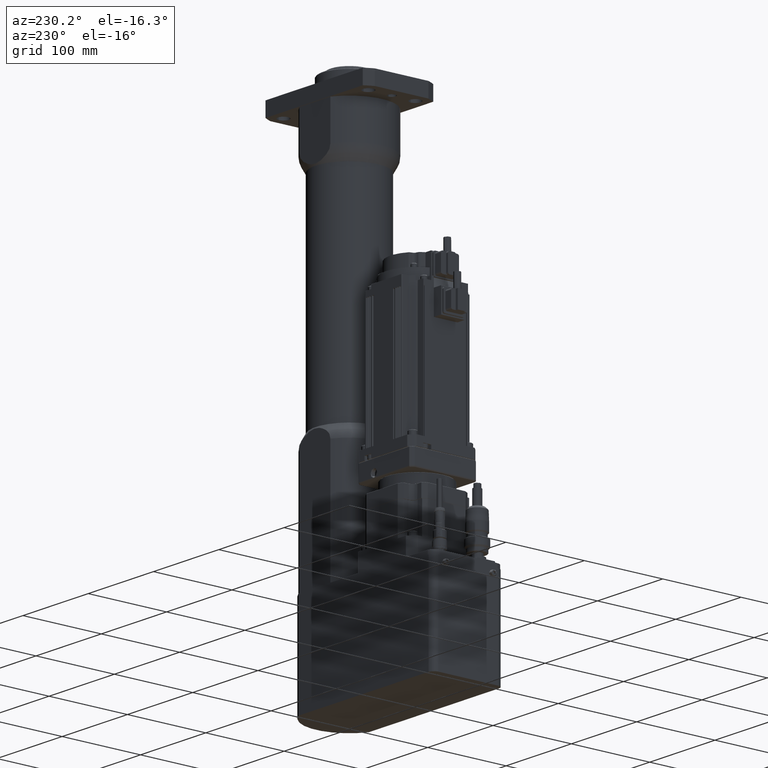
[diagram: clean part render]
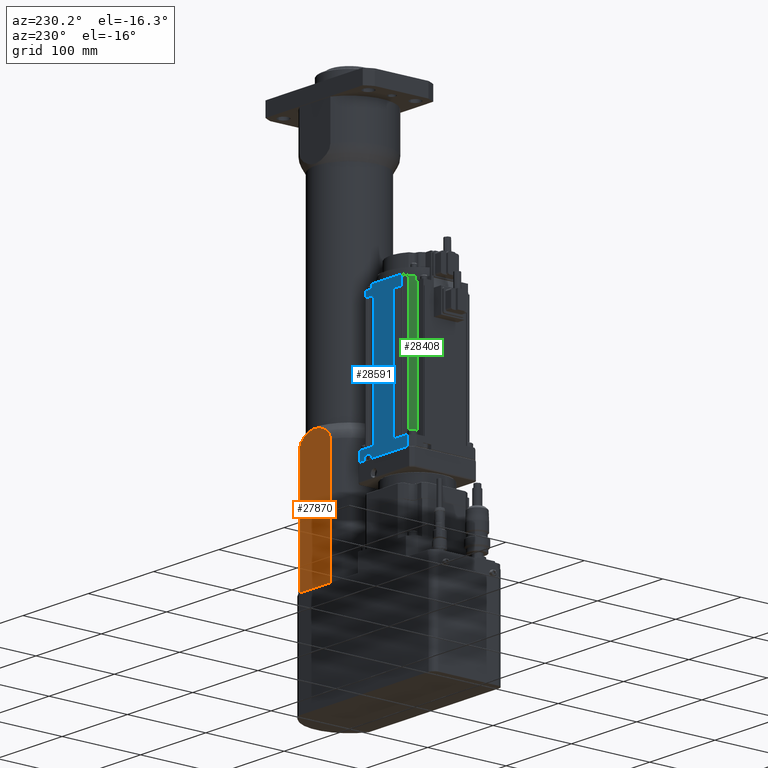
[diagram: same view with three faces highlighted in distinct colors, each labeled with its STEP entity id]
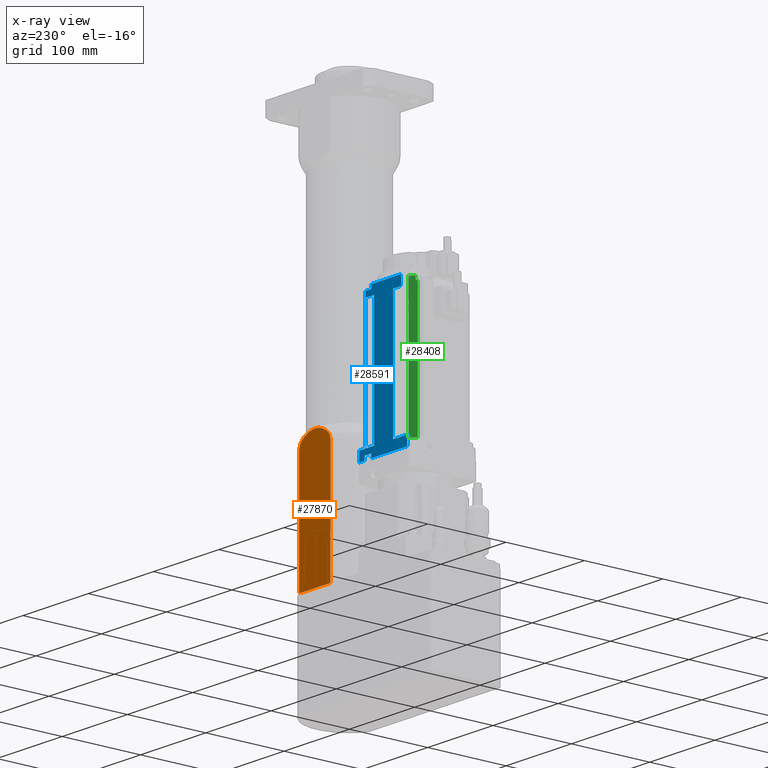
[diagram: x-ray of the same camera — body ghosted, the three highlighted faces saturated]
A machine part, auxiliary view with three faces highlighted in distinct colors.
The next image is the same camera in x-ray (body ghosted, the three faces saturated) — at least one of them is partly hidden behind the body in this view.
Their STEP definitions:

[orange] entity #27870 — the highlighted planar face has unit normal (0, -1, 0).
#2017=B_SPLINE_CURVE_WITH_KNOTS('',3,(#44316,#44317,#44318,#44319,#44320,
#44321,#44322,#44323,#44324,#44325,#44326,#44327,#44328,#44329),
 .UNSPECIFIED.,.F.,.F.,(4,2,2,2,2,2,4),(7.45745620804549,7.64599320848023,
7.91508123407937,8.10491084271875,8.29474045135813,8.45672411882078,8.61870778628343),
 .UNSPECIFIED.);
#2018=B_SPLINE_CURVE_WITH_KNOTS('',3,(#44334,#44335,#44336,#44337,#44338,
#44339,#44340,#44341,#44342,#44343,#44344,#44345,#44346,#44347),
 .UNSPECIFIED.,.F.,.F.,(4,2,2,2,2,2,4),(2.87290259542781,3.03488626289046,
3.19686993035311,3.38669953899249,3.57652914763187,3.84561717323101,4.03415417366575),
 .UNSPECIFIED.);
#2237=(
BOUNDED_CURVE()
B_SPLINE_CURVE(2,(#44331,#44332,#44333),.UNSPECIFIED.,.F.,.F.)
B_SPLINE_CURVE_WITH_KNOTS((3,3),(0.,3.66773939196049),.UNSPECIFIED.)
CURVE()
GEOMETRIC_REPRESENTATION_ITEM()
RATIONAL_B_SPLINE_CURVE((1.,1.07546609262929,1.))
REPRESENTATION_ITEM('')
);
#2608=PLANE('',#30248);
#3828=LINE('',#44187,#5681);
#3838=LINE('',#44349,#5691);
#3839=LINE('',#44350,#5692);
#5681=VECTOR('',#35179,147.516660498395);
#5691=VECTOR('',#35201,47.4973683481517);
#5692=VECTOR('',#35202,147.516660498395);
#8664=FACE_OUTER_BOUND('',#10586,.T.);
#10586=EDGE_LOOP('',(#22071,#22072,#22073,#22074,#22075,#22076));
#14313=VERTEX_POINT('',#44184);
#14314=VERTEX_POINT('',#44186);
#14333=VERTEX_POINT('',#44314);
#14334=VERTEX_POINT('',#44315);
#14335=VERTEX_POINT('',#44330);
#14336=VERTEX_POINT('',#44348);
#17216=EDGE_CURVE('',#14313,#14314,#3828,.T.);
#17237=EDGE_CURVE('',#14333,#14334,#2017,.T.);
#17238=EDGE_CURVE('',#14335,#14333,#2237,.T.);
#17239=EDGE_CURVE('',#14314,#14335,#2018,.T.);
#17240=EDGE_CURVE('',#14336,#14313,#3838,.T.);
#17241=EDGE_CURVE('',#14334,#14336,#3839,.T.);
#22071=ORIENTED_EDGE('',*,*,#17237,.F.);
#22072=ORIENTED_EDGE('',*,*,#17238,.F.);
#22073=ORIENTED_EDGE('',*,*,#17239,.F.);
#22074=ORIENTED_EDGE('',*,*,#17216,.F.);
#22075=ORIENTED_EDGE('',*,*,#17240,.F.);
#22076=ORIENTED_EDGE('',*,*,#17241,.F.);
#27870=ADVANCED_FACE('',(#8664),#2608,.F.);
#30248=AXIS2_PLACEMENT_3D('',#44313,#35199,#35200);
#35179=DIRECTION('',(0.,0.,1.));
#35199=DIRECTION('center_axis',(1.86995290600072E-16,-1.,0.));
#35200=DIRECTION('ref_axis',(-1.,0.,0.));
#35201=DIRECTION('',(1.,1.86995290600071E-16,1.40393876744645E-48));
#35202=DIRECTION('',(0.,0.,-1.));
#44184=CARTESIAN_POINT('',(23.7486841740759,44.,-10.));
#44186=CARTESIAN_POINT('',(23.7486841740758,44.,137.516660498395));
#44187=CARTESIAN_POINT('',(23.7486841740758,44.,155.));
#44313=CARTESIAN_POINT('Origin',(23.7486841740758,44.,487.));
#44314=CARTESIAN_POINT('',(-17.413514422463,44.,147.516660498395));
#44315=CARTESIAN_POINT('',(-23.7486841740758,44.,137.516660498395));
#44316=CARTESIAN_POINT('Ctrl Pts',(-17.413514422463,44.,147.516660498395));
#44317=CARTESIAN_POINT('Ctrl Pts',(-17.9691772268156,44.,147.162492770957));
#44318=CARTESIAN_POINT('Ctrl Pts',(-18.5307143099185,44.,146.763774414199));
#44319=CARTESIAN_POINT('Ctrl Pts',(-19.8257663309892,44.,145.715214285908));
#44320=CARTESIAN_POINT('Ctrl Pts',(-20.5281513532452,44.,145.02794629031));
#44321=CARTESIAN_POINT('Ctrl Pts',(-21.5116079174485,44.,143.856249601342));
#44322=CARTESIAN_POINT('Ctrl Pts',(-21.9207607468253,44.,143.294559762673));
#44323=CARTESIAN_POINT('Ctrl Pts',(-22.6269587478608,44.,142.105984409436));
#44324=CARTESIAN_POINT('Ctrl Pts',(-22.9232767901791,44.,141.478667017768));
#44325=CARTESIAN_POINT('Ctrl Pts',(-23.3273240656141,44.,140.377759800107));
#44326=CARTESIAN_POINT('Ctrl Pts',(-23.4886062749043,44.,139.807449208811));
#44327=CARTESIAN_POINT('Ctrl Pts',(-23.6994141423763,44.,138.646895546326));
#44328=CARTESIAN_POINT('Ctrl Pts',(-23.7486841740758,44.,138.056606056604));
#44329=CARTESIAN_POINT('Ctrl Pts',(-23.7486841740758,44.,137.516660498395));
#44330=CARTESIAN_POINT('',(17.413514422463,44.,147.516660498395));
#44331=CARTESIAN_POINT('Ctrl Pts',(17.4135144224629,44.,147.516660498395));
#44332=CARTESIAN_POINT('Ctrl Pts',(-8.88178419700125E-15,44.,158.615666552794));
#44333=CARTESIAN_POINT('Ctrl Pts',(-17.413514422463,44.,147.516660498395));
#44334=CARTESIAN_POINT('Ctrl Pts',(23.7486841740758,44.,137.516660498395));
#44335=CARTESIAN_POINT('Ctrl Pts',(23.7486841740758,44.,138.056606056604));
#44336=CARTESIAN_POINT('Ctrl Pts',(23.6994141423763,44.,138.646895546326));
#44337=CARTESIAN_POINT('Ctrl Pts',(23.4886062749043,44.,139.807449208811));
#44338=CARTESIAN_POINT('Ctrl Pts',(23.3273240656141,44.,140.377759800107));
#44339=CARTESIAN_POINT('Ctrl Pts',(22.9232767901791,44.,141.478667017768));
#44340=CARTESIAN_POINT('Ctrl Pts',(22.6269587478607,44.,142.105984409436));
#44341=CARTESIAN_POINT('Ctrl Pts',(21.9207607468253,44.,143.294559762673));
#44342=CARTESIAN_POINT('Ctrl Pts',(21.5116079174484,44.,143.856249601343));
#44343=CARTESIAN_POINT('Ctrl Pts',(20.5281513532452,44.,145.02794629031));
#44344=CARTESIAN_POINT('Ctrl Pts',(19.8257663309892,44.,145.715214285908));
#44345=CARTESIAN_POINT('Ctrl Pts',(18.5307143099185,44.,146.763774414199));
#44346=CARTESIAN_POINT('Ctrl Pts',(17.9691772268155,44.,147.162492770957));
#44347=CARTESIAN_POINT('Ctrl Pts',(17.4135144224629,44.,147.516660498395));
#44348=CARTESIAN_POINT('',(-23.7486841740758,43.9999999999999,-10.));
#44349=CARTESIAN_POINT('',(-23.7486841740758,43.9999999999999,-10.));
#44350=CARTESIAN_POINT('',(-23.7486841740758,44.,155.));

[blue] entity #28591 — the highlighted planar face has unit normal (-0, 1, 0).
#3010=PLANE('',#31586);
#4293=LINE('',#46965,#6146);
#4296=LINE('',#46978,#6149);
#4312=LINE('',#47028,#6165);
#4314=LINE('',#47034,#6167);
#4317=LINE('',#47039,#6170);
#4490=LINE('',#47470,#6343);
#4497=LINE('',#47491,#6350);
#4499=LINE('',#47498,#6352);
#4512=LINE('',#47530,#6365);
#4519=LINE('',#47550,#6372);
#4526=LINE('',#47570,#6379);
#4533=LINE('',#47589,#6386);
#4540=LINE('',#47607,#6393);
#4542=LINE('',#47613,#6395);
#4556=LINE('',#47660,#6409);
#4600=LINE('',#47804,#6453);
#4801=LINE('',#48520,#6654);
#4802=LINE('',#48523,#6655);
#4813=LINE('',#48554,#6666);
#4816=LINE('',#48562,#6669);
#4820=LINE('',#48574,#6673);
#4825=LINE('',#48589,#6678);
#4828=LINE('',#48597,#6681);
#4833=LINE('',#48613,#6686);
#4841=LINE('',#48632,#6694);
#4847=LINE('',#48647,#6700);
#4848=LINE('',#48653,#6701);
#4849=LINE('',#48657,#6702);
#4852=LINE('',#48667,#6705);
#4853=LINE('',#48671,#6706);
#4854=LINE('',#48672,#6707);
#4855=LINE('',#48673,#6708);
#4856=LINE('',#48674,#6709);
#6146=VECTOR('',#37246,12.);
#6149=VECTOR('',#37259,12.);
#6165=VECTOR('',#37305,9.99999999999999);
#6167=VECTOR('',#37311,5.);
#6170=VECTOR('',#37316,5.);
#6343=VECTOR('',#37671,3.99999999999997);
#6350=VECTOR('',#37688,3.00000000000001);
#6352=VECTOR('',#37694,154.);
#6365=VECTOR('',#37717,3.00000000000002);
#6372=VECTOR('',#37734,3.);
#6379=VECTOR('',#37751,3.50000000000003);
#6386=VECTOR('',#37768,3.50000000000001);
#6393=VECTOR('',#37783,2.99999999999996);
#6395=VECTOR('',#37789,154.);
#6409=VECTOR('',#37837,2.00000000000001);
#6453=VECTOR('',#37983,5.);
#6654=VECTOR('',#38702,46.);
#6655=VECTOR('',#38705,12.0000000000001);
#6666=VECTOR('',#38742,3.5);
#6669=VECTOR('',#38753,2.99999999999999);
#6673=VECTOR('',#38767,3.);
#6678=VECTOR('',#38786,2.99999999999999);
#6681=VECTOR('',#38795,154.);
#6686=VECTOR('',#38812,3.49999999999999);
#6694=VECTOR('',#38836,3.00000000000001);
#6700=VECTOR('',#38856,1.99999999999999);
#6701=VECTOR('',#38865,8.99999999999999);
#6702=VECTOR('',#38870,161.);
#6705=VECTOR('',#38885,3.99999999999999);
#6706=VECTOR('',#38892,9.33408747342602);
#6707=VECTOR('',#38893,8.33408747342602);
#6708=VECTOR('',#38894,55.334087473426);
#6709=VECTOR('',#38895,9.33408747342602);
#7328=FACE_BOUND('',#11455,.T.);
#9385=FACE_OUTER_BOUND('',#11454,.T.);
#11454=EDGE_LOOP('',(#25391,#25392,#25393,#25394,#25395,#25396,#25397,#25398,
#25399,#25400,#25401,#25402,#25403,#25404,#25405,#25406,#25407,#25408,#25409,
#25410,#25411,#25412,#25413));
#11455=EDGE_LOOP('',(#25414,#25415,#25416,#25417,#25418,#25419,#25420,#25421,
#25422,#25423));
#14923=VERTEX_POINT('',#46962);
#14924=VERTEX_POINT('',#46964);
#14926=VERTEX_POINT('',#46970);
#14929=VERTEX_POINT('',#46976);
#14946=VERTEX_POINT('',#47022);
#14948=VERTEX_POINT('',#47026);
#14950=VERTEX_POINT('',#47033);
#14951=VERTEX_POINT('',#47037);
#15117=VERTEX_POINT('',#47467);
#15118=VERTEX_POINT('',#47469);
#15126=VERTEX_POINT('',#47488);
#15127=VERTEX_POINT('',#47490);
#15129=VERTEX_POINT('',#47496);
#15130=VERTEX_POINT('',#47497);
#15143=VERTEX_POINT('',#47527);
#15144=VERTEX_POINT('',#47529);
#15152=VERTEX_POINT('',#47548);
#15160=VERTEX_POINT('',#47569);
#15174=VERTEX_POINT('',#47605);
#15176=VERTEX_POINT('',#47612);
#15192=VERTEX_POINT('',#47658);
#15240=VERTEX_POINT('',#47801);
#15241=VERTEX_POINT('',#47803);
#15457=VERTEX_POINT('',#48518);
#15458=VERTEX_POINT('',#48522);
#15461=VERTEX_POINT('',#48533);
#15464=VERTEX_POINT('',#48545);
#15469=VERTEX_POINT('',#48573);
#15473=VERTEX_POINT('',#48593);
#15476=VERTEX_POINT('',#48603);
#15479=VERTEX_POINT('',#48612);
#15485=VERTEX_POINT('',#48651);
#15486=VERTEX_POINT('',#48655);
#18170=EDGE_CURVE('',#14923,#14924,#4293,.T.);
#18177=EDGE_CURVE('',#14926,#14929,#4296,.T.);
#18202=EDGE_CURVE('',#14946,#14948,#4312,.T.);
#18205=EDGE_CURVE('',#14950,#14946,#4314,.T.);
#18208=EDGE_CURVE('',#14948,#14951,#4317,.T.);
#18417=EDGE_CURVE('',#15117,#15118,#4490,.T.);
#18427=EDGE_CURVE('',#15126,#15127,#4497,.T.);
#18430=EDGE_CURVE('',#15129,#15130,#4499,.T.);
#18445=EDGE_CURVE('',#15144,#15143,#4512,.T.);
#18455=EDGE_CURVE('',#15143,#15152,#4519,.T.);
#18465=EDGE_CURVE('',#15144,#15160,#4526,.T.);
#18475=EDGE_CURVE('',#15127,#15117,#4533,.T.);
#18484=EDGE_CURVE('',#15152,#15174,#4540,.T.);
#18487=EDGE_CURVE('',#15174,#15176,#4542,.T.);
#18512=EDGE_CURVE('',#15192,#15130,#4556,.T.);
#18590=EDGE_CURVE('',#15241,#15240,#4600,.T.);
#18919=EDGE_CURVE('',#15241,#15457,#4801,.T.);
#18920=EDGE_CURVE('',#15457,#15458,#4802,.T.);
#18937=EDGE_CURVE('',#15458,#15461,#4813,.T.);
#18941=EDGE_CURVE('',#15461,#15464,#4816,.T.);
#18947=EDGE_CURVE('',#15464,#15469,#4820,.T.);
#18955=EDGE_CURVE('',#15469,#15176,#4825,.T.);
#18959=EDGE_CURVE('',#15118,#15473,#4828,.T.);
#18967=EDGE_CURVE('',#15476,#15479,#4833,.T.);
#18978=EDGE_CURVE('',#15479,#15192,#4841,.T.);
#18986=EDGE_CURVE('',#15129,#15126,#4847,.T.);
#18989=EDGE_CURVE('',#15240,#15485,#4848,.T.);
#18991=EDGE_CURVE('',#15486,#15485,#4849,.T.);
#18995=EDGE_CURVE('',#15473,#15476,#4852,.T.);
#18996=EDGE_CURVE('',#14924,#15486,#4853,.T.);
#18997=EDGE_CURVE('',#14923,#14950,#4854,.T.);
#18998=EDGE_CURVE('',#14951,#14926,#4855,.T.);
#18999=EDGE_CURVE('',#15160,#14929,#4856,.T.);
#25391=ORIENTED_EDGE('',*,*,#18947,.F.);
#25392=ORIENTED_EDGE('',*,*,#18941,.F.);
#25393=ORIENTED_EDGE('',*,*,#18937,.F.);
#25394=ORIENTED_EDGE('',*,*,#18920,.F.);
#25395=ORIENTED_EDGE('',*,*,#18919,.F.);
#25396=ORIENTED_EDGE('',*,*,#18590,.T.);
#25397=ORIENTED_EDGE('',*,*,#18989,.T.);
#25398=ORIENTED_EDGE('',*,*,#18991,.F.);
#25399=ORIENTED_EDGE('',*,*,#18996,.F.);
#25400=ORIENTED_EDGE('',*,*,#18170,.F.);
#25401=ORIENTED_EDGE('',*,*,#18997,.T.);
#25402=ORIENTED_EDGE('',*,*,#18205,.T.);
#25403=ORIENTED_EDGE('',*,*,#18202,.T.);
#25404=ORIENTED_EDGE('',*,*,#18208,.T.);
#25405=ORIENTED_EDGE('',*,*,#18998,.T.);
#25406=ORIENTED_EDGE('',*,*,#18177,.T.);
#25407=ORIENTED_EDGE('',*,*,#18999,.F.);
#25408=ORIENTED_EDGE('',*,*,#18465,.F.);
#25409=ORIENTED_EDGE('',*,*,#18445,.T.);
#25410=ORIENTED_EDGE('',*,*,#18455,.T.);
#25411=ORIENTED_EDGE('',*,*,#18484,.T.);
#25412=ORIENTED_EDGE('',*,*,#18487,.T.);
#25413=ORIENTED_EDGE('',*,*,#18955,.F.);
#25414=ORIENTED_EDGE('',*,*,#18475,.F.);
#25415=ORIENTED_EDGE('',*,*,#18427,.F.);
#25416=ORIENTED_EDGE('',*,*,#18986,.F.);
#25417=ORIENTED_EDGE('',*,*,#18430,.T.);
#25418=ORIENTED_EDGE('',*,*,#18512,.F.);
#25419=ORIENTED_EDGE('',*,*,#18978,.F.);
#25420=ORIENTED_EDGE('',*,*,#18967,.F.);
#25421=ORIENTED_EDGE('',*,*,#18995,.F.);
#25422=ORIENTED_EDGE('',*,*,#18959,.F.);
#25423=ORIENTED_EDGE('',*,*,#18417,.F.);
#28591=ADVANCED_FACE('',(#9385,#7328),#3010,.T.);
#31586=AXIS2_PLACEMENT_3D('',#48670,#38890,#38891);
#37246=DIRECTION('',(9.30439962930108E-17,-3.48167009810821E-18,1.));
#37259=DIRECTION('',(9.30439962930108E-17,-3.48167009810821E-18,1.));
#37305=DIRECTION('',(-1.,-5.30652202546146E-15,9.30439962930108E-17));
#37311=DIRECTION('',(9.30439962930108E-17,-3.48167009810821E-18,1.));
#37316=DIRECTION('',(-9.30439962930108E-17,3.48167009810821E-18,-1.));
#37671=DIRECTION('',(-1.,-5.30652202546146E-15,9.30439962930109E-17));
#37688=DIRECTION('',(-1.,-5.30652202546146E-15,9.30439962930109E-17));
#37694=DIRECTION('',(-2.23038504212911E-17,-3.48167009810882E-18,1.));
#37717=DIRECTION('',(1.,5.30652202546146E-15,-9.30439962930109E-17));
#37734=DIRECTION('',(1.,5.30652202546146E-15,-9.30439962930109E-17));
#37751=DIRECTION('',(-1.,-5.30652202546146E-15,9.30439962930109E-17));
#37768=DIRECTION('',(-1.,-5.30652202546146E-15,9.30439962930109E-17));
#37783=DIRECTION('',(1.,5.30652202546146E-15,-9.30439962930109E-17));
#37789=DIRECTION('',(3.5257665140019E-16,-3.48167009810683E-18,1.));
#37837=DIRECTION('',(1.,5.30652202546146E-15,-9.30439962930107E-17));
#37983=DIRECTION('',(-9.30439962930108E-17,3.48167009810821E-18,-1.));
#38702=DIRECTION('',(-1.,-6.24500451352042E-16,9.30439962930108E-17));
#38705=DIRECTION('',(-9.30439962930108E-17,3.48167009810821E-18,-1.));
#38742=DIRECTION('',(1.,5.30652202546146E-15,-9.30439962930108E-17));
#38753=DIRECTION('',(1.,5.30652202546146E-15,-9.30439962930107E-17));
#38767=DIRECTION('',(1.,5.30652202546146E-15,-9.30439962930107E-17));
#38786=DIRECTION('',(1.,5.30652202546146E-15,-9.30439962930107E-17));
#38795=DIRECTION('',(-1.37651697135593E-16,-3.48167009810943E-18,1.));
#38812=DIRECTION('',(1.,5.30652202546146E-15,-9.30439962930107E-17));
#38836=DIRECTION('',(1.,5.30652202546146E-15,-9.30439962930107E-17));
#38856=DIRECTION('',(-1.,-5.30652202546146E-15,9.30439962930109E-17));
#38865=DIRECTION('',(1.,5.30652202546146E-15,-9.30439962930107E-17));
#38870=DIRECTION('',(9.30439962930108E-17,-3.48167009810821E-18,1.));
#38885=DIRECTION('',(1.,5.30652202546146E-15,-9.30439962930107E-17));
#38890=DIRECTION('center_axis',(-5.30652202546146E-15,1.,3.4816700981087E-18));
#38891=DIRECTION('ref_axis',(-1.,-4.9737991503207E-15,0.));
#38892=DIRECTION('',(-1.,-5.30652202546146E-15,9.30439962930107E-17));
#38893=DIRECTION('',(-1.,-5.30652202546146E-15,9.30439962930107E-17));
#38894=DIRECTION('',(-1.,-5.30652202546146E-15,9.30439962930107E-17));
#38895=DIRECTION('',(-1.,-5.30652202546146E-15,9.30439962930107E-17));
#46962=CARTESIAN_POINT('',(-67.1659125265742,43.5000000000002,103.5));
#46964=CARTESIAN_POINT('',(-67.1659125265742,43.5000000000002,115.5));
#46965=CARTESIAN_POINT('',(-67.1659125265742,43.5000000000002,103.5));
#46970=CARTESIAN_POINT('',(-140.834087473426,43.4999999999998,103.5));
#46976=CARTESIAN_POINT('',(-140.834087473426,43.4999999999998,115.5));
#46978=CARTESIAN_POINT('',(-140.834087473426,43.4999999999998,103.5));
#47022=CARTESIAN_POINT('',(-75.5000000000002,43.5000000000001,108.5));
#47026=CARTESIAN_POINT('',(-85.5000000000002,43.5000000000001,108.5));
#47028=CARTESIAN_POINT('',(-73.8329562632872,43.5000000000002,108.5));
#47033=CARTESIAN_POINT('',(-75.5000000000002,43.5000000000001,103.5));
#47034=CARTESIAN_POINT('',(-75.5000000000002,43.5000000000002,103.5));
#47037=CARTESIAN_POINT('',(-85.5000000000002,43.5000000000001,103.5));
#47039=CARTESIAN_POINT('',(-85.5000000000002,43.5000000000001,103.5));
#47467=CARTESIAN_POINT('',(-86.0000000000003,43.5000000000001,115.5));
#47469=CARTESIAN_POINT('',(-90.0000000000002,43.5000000000001,115.5));
#47470=CARTESIAN_POINT('',(-78.0829562632872,43.5000000000001,115.5));
#47488=CARTESIAN_POINT('',(-79.5000000000003,43.5000000000001,115.5));
#47490=CARTESIAN_POINT('',(-82.5000000000003,43.5000000000001,115.5));
#47491=CARTESIAN_POINT('',(-74.5829562632872,43.5000000000002,115.5));
#47496=CARTESIAN_POINT('',(-77.5000000000003,43.5000000000002,115.5));
#47497=CARTESIAN_POINT('',(-77.5000000000003,43.5000000000002,269.5));
#47498=CARTESIAN_POINT('',(-77.5000000000003,43.5000000000001,109.5));
#47527=CARTESIAN_POINT('',(-125.,43.4999999999999,115.5));
#47529=CARTESIAN_POINT('',(-128.,43.4999999999999,115.5));
#47530=CARTESIAN_POINT('',(-97.3329562632872,43.5,115.5));
#47548=CARTESIAN_POINT('',(-122.,43.4999999999999,115.5));
#47550=CARTESIAN_POINT('',(-95.8329562632872,43.5000000000001,115.5));
#47569=CARTESIAN_POINT('',(-131.5,43.4999999999999,115.5));
#47570=CARTESIAN_POINT('',(-98.8329562632872,43.5,115.5));
#47589=CARTESIAN_POINT('',(-76.0829562632872,43.5000000000002,115.5));
#47605=CARTESIAN_POINT('',(-119.,43.4999999999999,115.5));
#47607=CARTESIAN_POINT('',(-94.0829562632872,43.5000000000001,115.5));
#47612=CARTESIAN_POINT('',(-119.,43.4999999999999,269.5));
#47613=CARTESIAN_POINT('',(-119.,43.4999999999999,109.5));
#47658=CARTESIAN_POINT('',(-79.5000000000003,43.5000000000001,269.5));
#47660=CARTESIAN_POINT('',(-80.5529379907412,43.5000000000001,269.5));
#47801=CARTESIAN_POINT('',(-85.5000000000002,43.5000000000001,276.5));
#47803=CARTESIAN_POINT('',(-85.5000000000002,43.5000000000001,281.5));
#47804=CARTESIAN_POINT('',(-85.5000000000002,43.5000000000001,192.5));
#48518=CARTESIAN_POINT('',(-131.5,43.5000000000001,281.5));
#48520=CARTESIAN_POINT('',(-75.5000000000002,43.5000000000002,281.5));
#48522=CARTESIAN_POINT('',(-131.5,43.4999999999999,269.5));
#48523=CARTESIAN_POINT('',(-131.5,43.4999999999999,109.5));
#48533=CARTESIAN_POINT('',(-128.,43.4999999999999,269.5));
#48545=CARTESIAN_POINT('',(-125.,43.4999999999999,269.5));
#48554=CARTESIAN_POINT('',(-80.5529379907412,43.5000000000001,269.5));
#48562=CARTESIAN_POINT('',(-80.5529379907412,43.5000000000001,269.5));
#48573=CARTESIAN_POINT('',(-122.,43.4999999999999,269.5));
#48574=CARTESIAN_POINT('',(-80.5529379907412,43.5000000000001,269.5));
#48589=CARTESIAN_POINT('',(-80.5529379907412,43.5000000000001,269.5));
#48593=CARTESIAN_POINT('',(-90.0000000000003,43.5000000000001,269.5));
#48597=CARTESIAN_POINT('',(-90.0000000000003,43.5000000000001,186.5));
#48603=CARTESIAN_POINT('',(-86.0000000000003,43.5000000000001,269.5));
#48612=CARTESIAN_POINT('',(-82.5000000000003,43.5000000000001,269.5));
#48613=CARTESIAN_POINT('',(-80.5529379907412,43.5000000000001,269.5));
#48632=CARTESIAN_POINT('',(-80.5529379907412,43.5000000000001,269.5));
#48647=CARTESIAN_POINT('',(-73.0829562632872,43.5000000000002,115.5));
#48651=CARTESIAN_POINT('',(-76.5000000000002,43.5000000000002,276.5));
#48653=CARTESIAN_POINT('',(-73.699739465119,43.5000000000002,276.5));
#48655=CARTESIAN_POINT('',(-76.5000000000002,43.5000000000002,115.5));
#48657=CARTESIAN_POINT('',(-76.5000000000002,43.5000000000002,109.5));
#48667=CARTESIAN_POINT('',(-80.5529379907412,43.5000000000001,269.5));
#48670=CARTESIAN_POINT('Origin',(-67.1659125265742,43.5000000000002,103.5));
#48671=CARTESIAN_POINT('',(-67.1659125265742,43.5000000000002,115.5));
#48672=CARTESIAN_POINT('',(-67.1659125265742,43.5000000000002,103.5));
#48673=CARTESIAN_POINT('',(-67.1659125265742,43.5000000000002,103.5));
#48674=CARTESIAN_POINT('',(-67.1659125265742,43.5000000000002,115.5));

[green] entity #28408 — the highlighted cylindrical surface (partial cylindrical patch) has radius 45 mm, axis along (0, -0, 1).
#4279=LINE('',#46894,#6132);
#4359=LINE('',#47137,#6212);
#4584=LINE('',#47768,#6437);
#4585=LINE('',#47773,#6438);
#6132=VECTOR('',#37192,5.39999999999999);
#6212=VECTOR('',#37394,166.);
#6437=VECTOR('',#37953,5.);
#6438=VECTOR('',#37960,161.);
#7858=CYLINDRICAL_SURFACE('',#31250,45.);
#9202=FACE_OUTER_BOUND('',#11241,.T.);
#11241=EDGE_LOOP('',(#24498,#24499,#24500,#24501,#24502,#24503,#24504,#24505,
#24506));
#13020=CIRCLE('',#31251,45.);
#13021=CIRCLE('',#31252,45.);
#13022=CIRCLE('',#31253,45.);
#13023=CIRCLE('',#31254,45.);
#14904=VERTEX_POINT('',#46891);
#14905=VERTEX_POINT('',#46893);
#14988=VERTEX_POINT('',#47134);
#14989=VERTEX_POINT('',#47136);
#15226=VERTEX_POINT('',#47764);
#15227=VERTEX_POINT('',#47765);
#15228=VERTEX_POINT('',#47767);
#15229=VERTEX_POINT('',#47771);
#18143=EDGE_CURVE('',#14904,#14905,#4279,.T.);
#18254=EDGE_CURVE('',#14988,#14989,#4359,.T.);
#18570=EDGE_CURVE('',#15226,#15227,#13020,.T.);
#18571=EDGE_CURVE('',#15227,#15228,#4584,.T.);
#18572=EDGE_CURVE('',#14989,#15228,#13021,.T.);
#18573=EDGE_CURVE('',#14904,#14988,#13022,.T.);
#18574=EDGE_CURVE('',#15229,#14904,#13023,.T.);
#18575=EDGE_CURVE('',#15229,#15226,#4585,.T.);
#24498=ORIENTED_EDGE('',*,*,#18570,.T.);
#24499=ORIENTED_EDGE('',*,*,#18571,.T.);
#24500=ORIENTED_EDGE('',*,*,#18572,.F.);
#24501=ORIENTED_EDGE('',*,*,#18254,.F.);
#24502=ORIENTED_EDGE('',*,*,#18573,.F.);
#24503=ORIENTED_EDGE('',*,*,#18143,.T.);
#24504=ORIENTED_EDGE('',*,*,#18143,.F.);
#24505=ORIENTED_EDGE('',*,*,#18574,.F.);
#24506=ORIENTED_EDGE('',*,*,#18575,.T.);
#28408=ADVANCED_FACE('',(#9202),#7858,.T.);
#31250=AXIS2_PLACEMENT_3D('',#47763,#37949,#37950);
#31251=AXIS2_PLACEMENT_3D('',#47766,#37951,#37952);
#31252=AXIS2_PLACEMENT_3D('',#47769,#37954,#37955);
#31253=AXIS2_PLACEMENT_3D('',#47770,#37956,#37957);
#31254=AXIS2_PLACEMENT_3D('',#47772,#37958,#37959);
#37192=DIRECTION('',(9.30439962930108E-17,-3.48167009810821E-18,1.));
#37394=DIRECTION('',(9.30439962930108E-17,-3.48167009810821E-18,1.));
#37949=DIRECTION('center_axis',(9.30439962930108E-17,-3.48167009810821E-18,
1.));
#37950=DIRECTION('ref_axis',(-0.256038191595626,0.966666666666665,2.71884309778639E-17));
#37951=DIRECTION('center_axis',(-9.30439962930108E-17,3.48167009810821E-18,
-1.));
#37952=DIRECTION('ref_axis',(-0.256038191595626,0.966666666666665,2.71884309778639E-17));
#37953=DIRECTION('',(9.30439962930108E-17,-3.48167009810821E-18,1.));
#37954=DIRECTION('center_axis',(9.30439962930108E-17,-3.48167009810821E-18,
1.));
#37955=DIRECTION('ref_axis',(-0.633333333333338,0.77387911774959,6.16222561027263E-17));
#37956=DIRECTION('center_axis',(-9.30439962930108E-17,3.48167009810821E-18,
-1.));
#37957=DIRECTION('ref_axis',(-0.256038191595626,0.966666666666665,2.71884309778639E-17));
#37958=DIRECTION('center_axis',(-9.30439962930108E-17,3.48167009810821E-18,
-1.));
#37959=DIRECTION('ref_axis',(-0.256038191595626,0.966666666666665,2.71884309778639E-17));
#37960=DIRECTION('',(9.30439962930108E-17,-3.48167009810821E-18,1.));
#46891=CARTESIAN_POINT('',(-135.819805153395,31.8198051533944,115.5));
#46893=CARTESIAN_POINT('',(-135.819805153395,31.8198051533944,120.9));
#46894=CARTESIAN_POINT('',(-135.819805153395,31.8198051533944,115.5));
#47134=CARTESIAN_POINT('',(-132.5,34.8245602987315,115.5));
#47136=CARTESIAN_POINT('',(-132.5,34.8245602987315,281.5));
#47137=CARTESIAN_POINT('',(-132.5,34.8245602987315,115.5));
#47763=CARTESIAN_POINT('Origin',(-104.,-4.17800411772985E-17,115.5));
#47764=CARTESIAN_POINT('',(-138.824560298732,28.4999999999998,276.5));
#47765=CARTESIAN_POINT('',(-137.5,30.0457983751471,276.5));
#47766=CARTESIAN_POINT('Origin',(-104.,-6.0232892697272E-16,276.5));
#47767=CARTESIAN_POINT('',(-137.5,30.0457983751471,281.5));
#47768=CARTESIAN_POINT('',(-137.5,30.0457983751471,115.5));
#47769=CARTESIAN_POINT('Origin',(-104.,-6.19737277463261E-16,281.5));
#47770=CARTESIAN_POINT('Origin',(-104.,-4.17800411772985E-17,115.5));
#47771=CARTESIAN_POINT('',(-138.824560298732,28.4999999999998,115.5));
#47772=CARTESIAN_POINT('Origin',(-104.,-4.17800411772985E-17,115.5));
#47773=CARTESIAN_POINT('',(-138.824560298732,28.4999999999998,115.5));